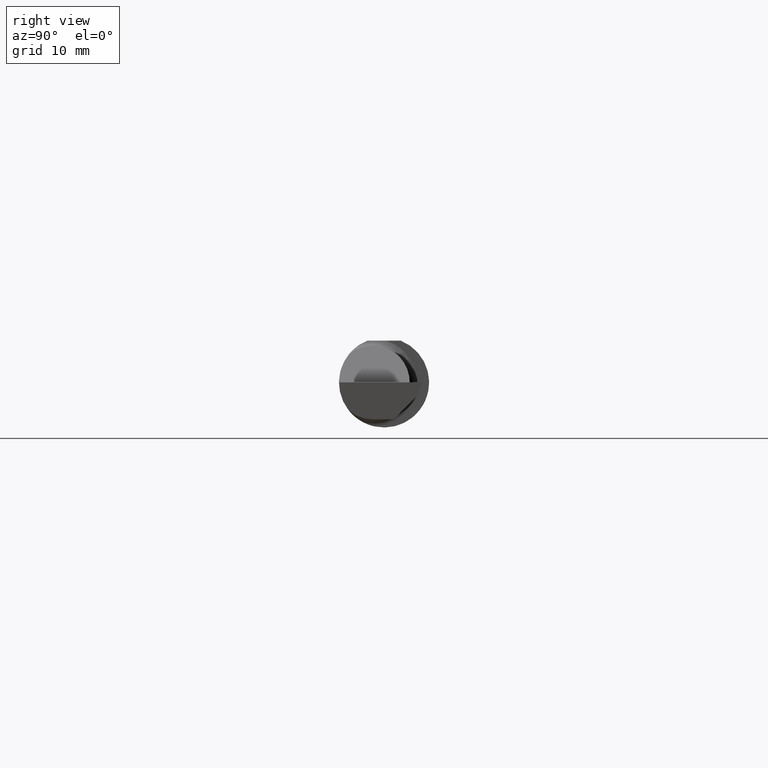
[diagram: clean part render]
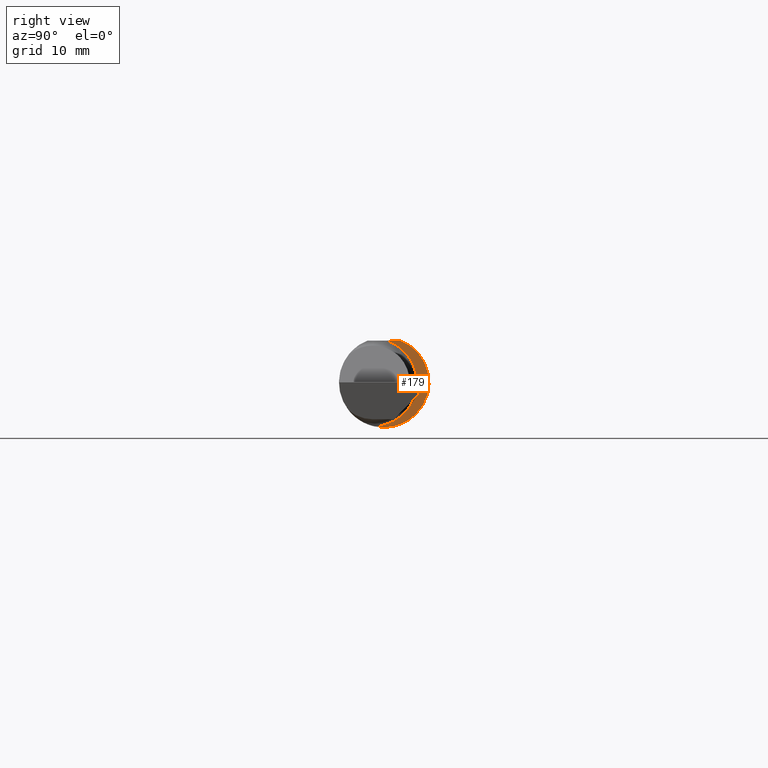
[diagram: same view with one face highlighted and labeled with its STEP entity id]
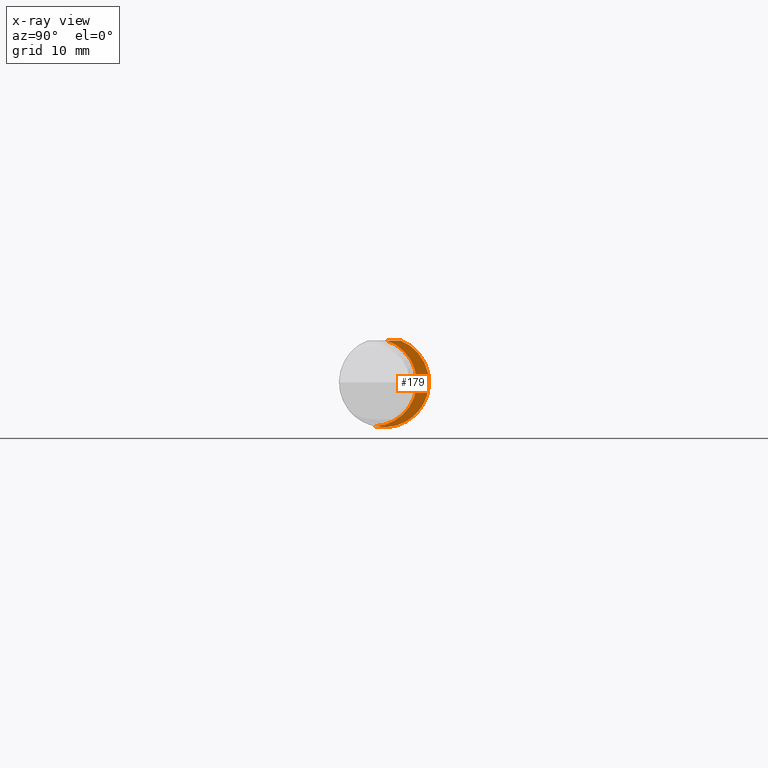
[diagram: x-ray of the same camera — body ghosted, the highlighted face saturated]
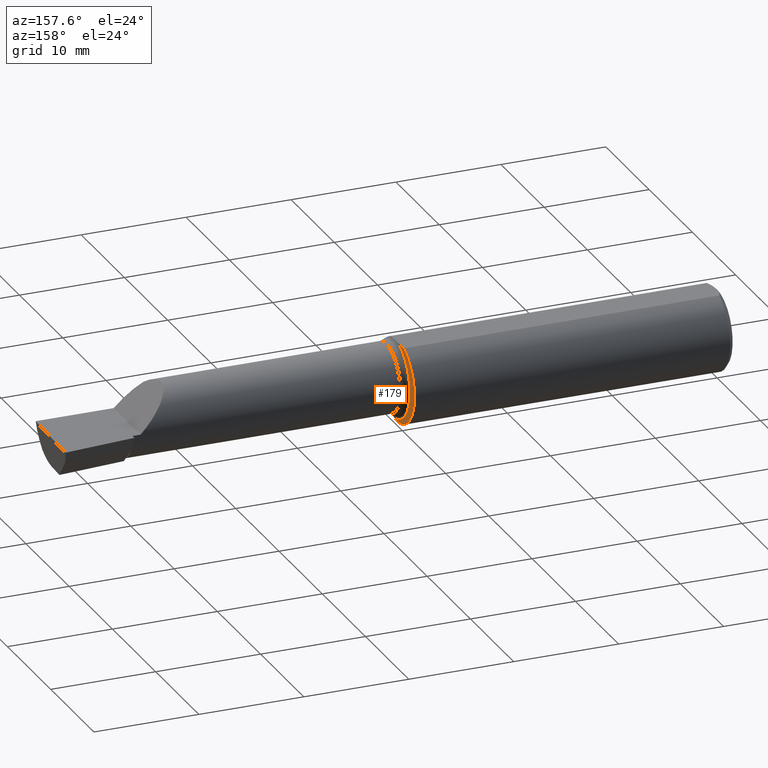
[diagram: same view with one face highlighted and labeled with its STEP entity id]
A machine part, right view. The second image highlights one B-rep face of the part: STEP entity #179.
The next image is the same camera in x-ray: the body ghosted, the highlighted face saturated — about 5% of this face is hidden behind the body in this view.
A second angle (auxiliary view) of the same face is appended — the face is thin or edge-on in the first view.
In plain terms, the highlighted planar face has unit normal (1, -0, 0).
Its self-contained STEP definition (entity closure, byte-faithful):
#13 = CARTESIAN_POINT ( 'NONE',  ( 1.199999999999999956, 0.2061000000000000332, 0.1450999999999999512 ) ) ;
#39 = CARTESIAN_POINT ( 'NONE',  ( 1.199999999999999956, -0.03899999999999998607, 0.000000000000000000 ) ) ;
#50 = DIRECTION ( 'NONE',  ( 0.000000000000000000, 1.000000000000000000, 0.000000000000000000 ) ) ;
#60 = DIRECTION ( 'NONE',  ( -6.829619984160658046E-18, -1.000000000000000000, 1.656870447394628111E-16 ) ) ;
#66 = LINE ( 'NONE', #13, #81 ) ;
#78 = AXIS2_PLACEMENT_3D ( 'NONE', #568, #234, #50 ) ;
#81 = VECTOR ( 'NONE', #60, 39.37007874015748143 ) ;
#88 = DIRECTION ( 'NONE',  ( 6.829619984160658046E-18, 1.000000000000000000, 0.000000000000000000 ) ) ;
#110 = AXIS2_PLACEMENT_3D ( 'NONE', #39, #240, #588 ) ;
#122 = DIRECTION ( 'NONE',  ( 1.000000000000000000, -6.829619984160658046E-18, 0.000000000000000000 ) ) ;
#162 = EDGE_CURVE ( 'NONE', #484, #230, #521, .T. ) ;
#179 = ADVANCED_FACE ( 'NONE', ( #391 ), #381, .T. ) ;
#192 = CARTESIAN_POINT ( 'NONE',  ( 1.199999999999999956, 0.009212031693343570790, 0.1450999999999999790 ) ) ;
#212 = AXIS2_PLACEMENT_3D ( 'NONE', #336, #122, #88 ) ;
#230 = VERTEX_POINT ( 'NONE', #352 ) ;
#234 = DIRECTION ( 'NONE',  ( 1.000000000000000000, -6.829619984160658046E-18, 0.000000000000000000 ) ) ;
#240 = DIRECTION ( 'NONE',  ( -1.000000000000000000, 6.829619984160658046E-18, -0.000000000000000000 ) ) ;
#297 = EDGE_CURVE ( 'NONE', #230, #594, #66, .T. ) ;
#331 = EDGE_LOOP ( 'NONE', ( #492, #604, #397 ) ) ;
#336 = CARTESIAN_POINT ( 'NONE',  ( 1.199999999999999956, 0.1138999999999998763, 0.000000000000000000 ) ) ;
#352 = CARTESIAN_POINT ( 'NONE',  ( 1.199999999999999956, 0.05756040305626777820, 0.1450999999999999512 ) ) ;
#381 = PLANE ( 'NONE',  #212 ) ;
#386 = CIRCLE ( 'NONE', #110, 0.1528999999999998693 ) ;
#391 = FACE_OUTER_BOUND ( 'NONE', #331, .T. ) ;
#397 = ORIENTED_EDGE ( 'NONE', *, *, #535, .T. ) ;
#484 = VERTEX_POINT ( 'NONE', #614 ) ;
#492 = ORIENTED_EDGE ( 'NONE', *, *, #162, .T. ) ;
#521 = CIRCLE ( 'NONE', #78, 0.1560999999999999888 ) ;
#535 = EDGE_CURVE ( 'NONE', #594, #484, #386, .T. ) ;
#568 = CARTESIAN_POINT ( 'NONE',  ( 1.199999999999999956, 0.000000000000000000, 0.000000000000000000 ) ) ;
#588 = DIRECTION ( 'NONE',  ( 0.000000000000000000, -1.000000000000000000, 0.000000000000000000 ) ) ;
#594 = VERTEX_POINT ( 'NONE', #192 ) ;
#604 = ORIENTED_EDGE ( 'NONE', *, *, #297, .T. ) ;
#614 = CARTESIAN_POINT ( 'NONE',  ( 1.199999999999999956, -0.03217692307692354009, -0.1527476861405819564 ) ) ;